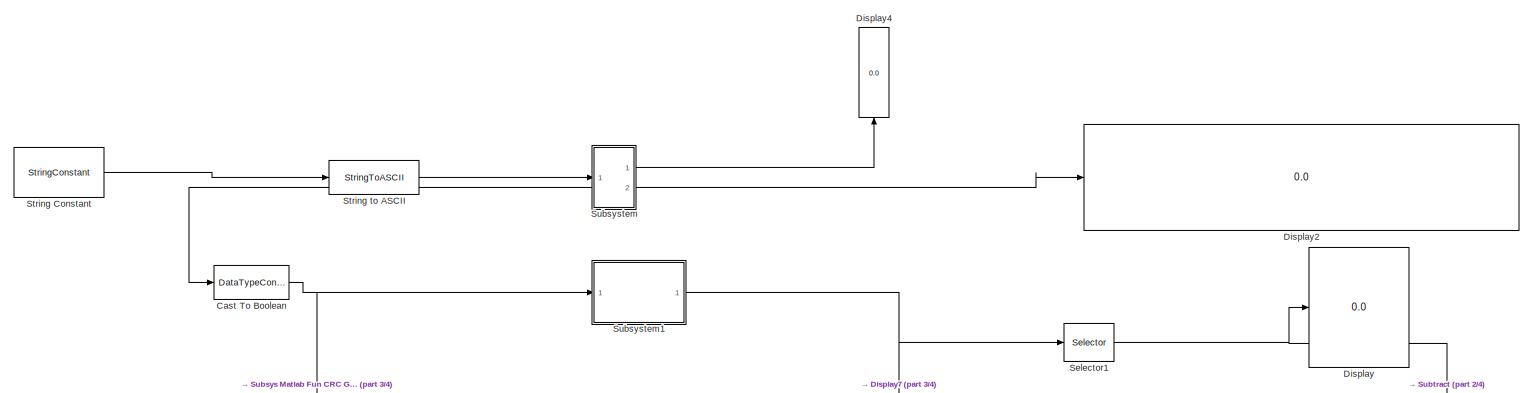
[diagram: root canvas - part 1/4, full width, top band]
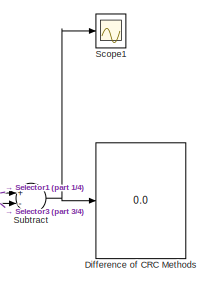
[diagram: root canvas - part 2/4, middle right region]
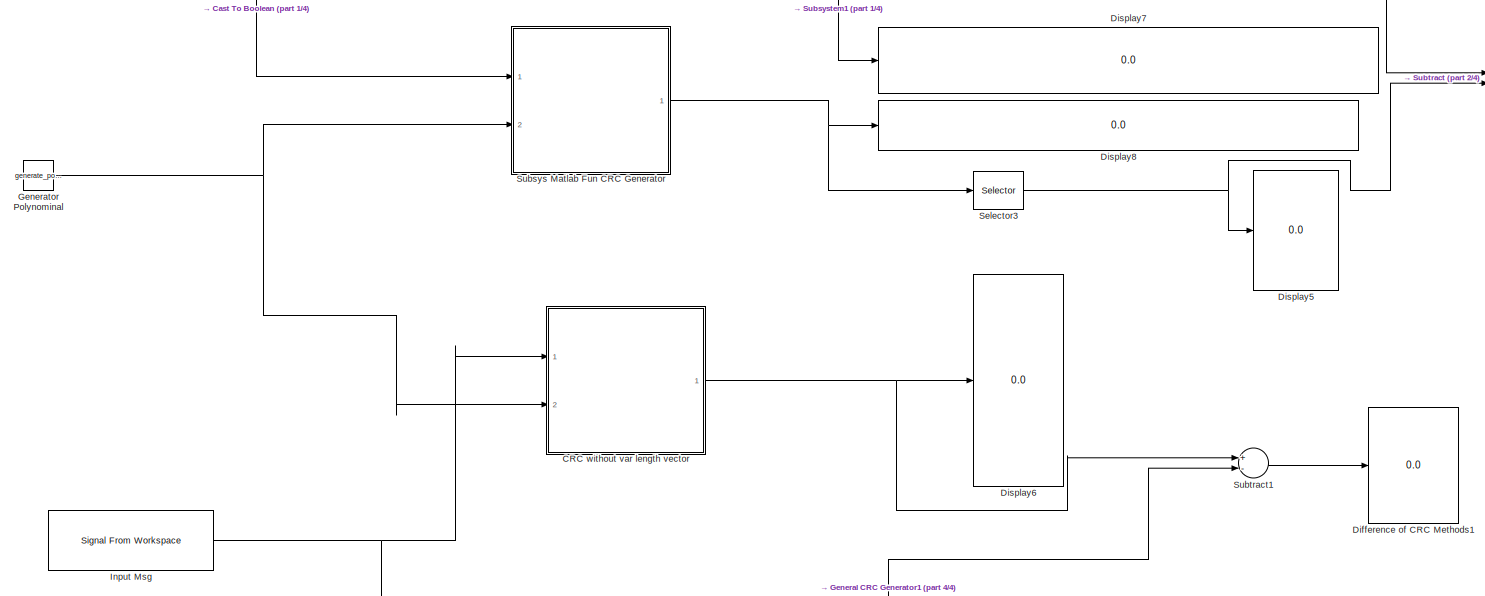
[diagram: root canvas - part 3/4, full width, middle band]
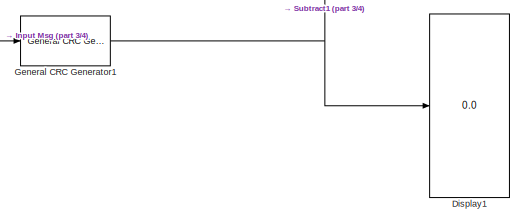
[diagram: root canvas - part 4/4, bottom center region]
MODEL slx_4823935a21b6
KIND model
CONFIG AbsTol = auto
CONFIG EnableMultiTasking = off
CONFIG FixedStep = 1
CONFIG MaxStep = auto
CONFIG MinStep = auto
CONFIG RelTol = 1e-3
CONFIG SampleTimeConstraint = Unconstrained
CONFIG Solver = FixedStepAuto
CONFIG SolverName = FixedStepAuto
CONFIG StartTime = 0.0
CONFIG StopTime = 20
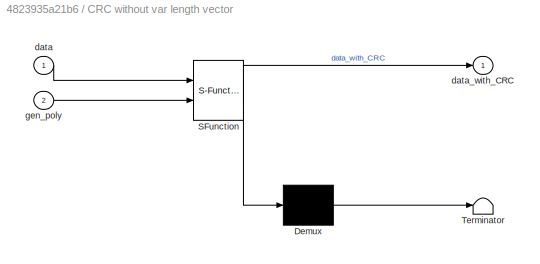
BLOCK [SubSystem] CRC without var length vector 
  ErrorFcn = Stateflow.Translate.translate
  PermitHierarchicalResolution = ExplicitOnly
  Ports = [2, 1]
  RequestExecContextInheritance = off
  SFBlockType = MATLAB Function
  TreatAsAtomicUnit = on
BLOCK [Demux] CRC without var length vector / Demux 
  Outputs = 1
  Ports = [1, 1]
BLOCK [S-Function] CRC without var length vector / SFunction 
  EnableBusSupport = on
  FunctionName = sf_sfun
  PortCounts = [2 2]
  Ports = [2, 2]
  SFcnIsStateOwnerBlock = off
  SFunctionDeploymentMode = off
  Tag = Stateflow S-Function CRC_Test 3
BLOCK [Terminator] CRC without var length vector / Terminator 
BLOCK [Inport] CRC without var length vector /data
  IconDisplay = Port number
BLOCK [Outport] CRC without var length vector /data_with_CRC
  IconDisplay = Port number
BLOCK [Inport] CRC without var length vector /gen_poly
  IconDisplay = Port number
  Port = 2
BLOCK [DataTypeConversion] Cast To Boolean
  OutDataTypeStr = boolean
  RndMeth = Floor
  SaturateOnIntegerOverflow = off
BLOCK [Display] Difference of CRC Methods
  Decimation = 1
  Ports = [1]
BLOCK [Display] Difference of CRC Methods1
  Decimation = 1
  Ports = [1]
BLOCK [Display] Display
  Decimation = 1
  Ports = [1]
BLOCK [Display] Display1
  Decimation = 1
  Ports = [1]
BLOCK [Display] Display2
  Decimation = 1
  Ports = [1]
BLOCK [Display] Display4
  Decimation = 1
  Ports = [1]
BLOCK [Display] Display5
  Decimation = 1
  Ports = [1]
BLOCK [Display] Display6
  Decimation = 1
  Ports = [1]
BLOCK [Display] Display7
  Decimation = 1
  Ports = [1]
BLOCK [Display] Display8
  Decimation = 1
  Ports = [1]
BLOCK [Reference] General CRC Generator1  REF=commcrc2/General CRC
Generator
  Ports = [1, 1]
  SourceBlock = commcrc2/General CRC\nGenerator
  SourceProductBaseCode = CM
  SourceProductName = Communications Toolbox
  SourceType = General CRC Generator
BLOCK [Constant] Generator Polynominal
  Value = generate_polynomial
BLOCK [Reference] Input Msg   REF=dspsrcs4/Signal From
Workspace
  Ports = [0, 1]
  SourceBlock = dspsrcs4/Signal From\nWorkspace
  SourceProductBaseCode = DS
  SourceProductName = DSP System Toolbox
  SourceType = Signal From Workspace
BLOCK [Scope] Scope1
  Floating = off
  NumInputPorts = 1
  Ports = [1]
  ScopeSpecificationString = Simulink.scopes.TimeScopeBlockCfg('CurrentConfiguration', extmgr.ConfigurationSet(extmgr.Configuration('Core','General UI',true),extmgr.Configuration('Core','Source UI',true),extmgr.Configuration('Sources','WiredSimulink',true,'DataLoggingVariableName','ScopeData1'),extmgr.Configuration('Visuals','Time Domain',true,'SerializedDisplays',{struct('MinYLimReal','-1.00000','MaxYLimReal','1.00000','YLab...<+1477ch>
BLOCK [Selector] Selector1
  IndexOptions = Index vector (dialog)
  Indices = [data_length+1:data_length+length(generate_polynomial)-1]
  InputPortWidth = data_length+length(generate_polynomial)-1
  OutputSizes = 1
  Ports = [1, 1]
BLOCK [Selector] Selector3
  IndexOptions = Index vector (dialog)
  Indices = [data_length+1:data_length+length(generate_polynomial)-1]
  InputPortWidth = data_length+length(generate_polynomial)-1
  OutputSizes = 1
  Ports = [1, 1]
BLOCK [StringConstant] String Constant
  String = "HKLawrlvfbnbliens"
BLOCK [StringToASCII] String to ASCII
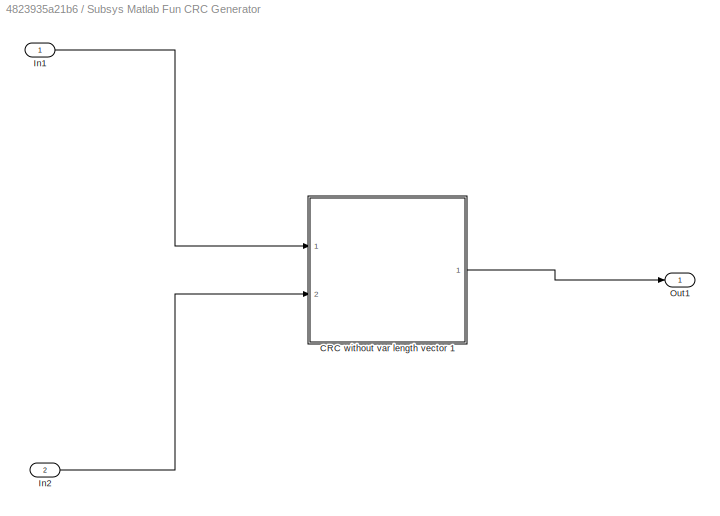
BLOCK [SubSystem] Subsys Matlab Fun CRC Generator
  Ports = [2, 1]
  RequestExecContextInheritance = off
  TreatAsAtomicUnit = on
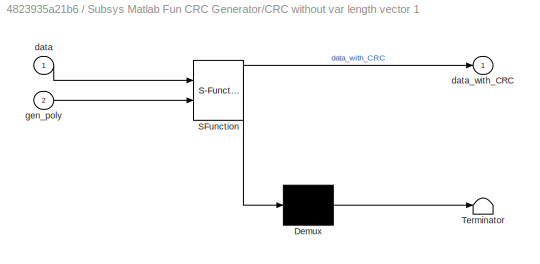
BLOCK [SubSystem] Subsys Matlab Fun CRC Generator/CRC without var length vector 1
  ErrorFcn = Stateflow.Translate.translate
  PermitHierarchicalResolution = ExplicitOnly
  Ports = [2, 1]
  RequestExecContextInheritance = off
  SFBlockType = MATLAB Function
  TreatAsAtomicUnit = on
BLOCK [Demux] Subsys Matlab Fun CRC Generator/CRC without var length vector 1/ Demux 
  Outputs = 1
  Ports = [1, 1]
BLOCK [S-Function] Subsys Matlab Fun CRC Generator/CRC without var length vector 1/ SFunction 
  EnableBusSupport = on
  FunctionName = sf_sfun
  PortCounts = [2 2]
  Ports = [2, 2]
  SFcnIsStateOwnerBlock = off
  SFunctionDeploymentMode = off
  Tag = Stateflow S-Function CRC_Test 1
BLOCK [Terminator] Subsys Matlab Fun CRC Generator/CRC without var length vector 1/ Terminator 
BLOCK [Inport] Subsys Matlab Fun CRC Generator/CRC without var length vector 1/data
  IconDisplay = Port number
BLOCK [Outport] Subsys Matlab Fun CRC Generator/CRC without var length vector 1/data_with_CRC
  IconDisplay = Port number
BLOCK [Inport] Subsys Matlab Fun CRC Generator/CRC without var length vector 1/gen_poly
  IconDisplay = Port number
  Port = 2
BLOCK [Inport] Subsys Matlab Fun CRC Generator/In1
  IconDisplay = Port number
BLOCK [Inport] Subsys Matlab Fun CRC Generator/In2
  IconDisplay = Port number
  Port = 2
BLOCK [Outport] Subsys Matlab Fun CRC Generator/Out1
  IconDisplay = Port number
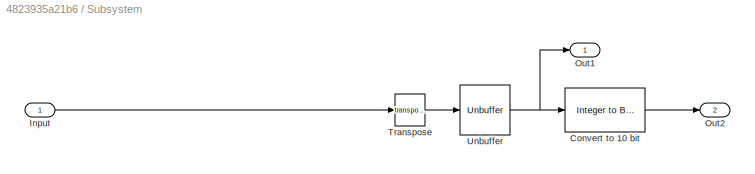
BLOCK [SubSystem] Subsystem
  Ports = [1, 2]
  RequestExecContextInheritance = off
  TreatAsAtomicUnit = on
BLOCK [Reference] Subsystem/Convert to 10 bit  REF=commutil2/Integer to Bit
Converter
  Ports = [1, 1]
  SourceBlock = commutil2/Integer to Bit\nConverter
  SourceProductBaseCode = CM
  SourceProductName = Communications Toolbox
  SourceType = Integer to Bit Converter
BLOCK [Inport] Subsystem/Input
  IconDisplay = Port number
BLOCK [Outport] Subsystem/Out1
  IconDisplay = Port number
BLOCK [Outport] Subsystem/Out2
  IconDisplay = Port number
  Port = 2
BLOCK [Math] Subsystem/Transpose
  Operator = transpose
  Ports = [1, 1]
BLOCK [Unbuffer] Subsystem/Unbuffer
  Ports = [1, 1]
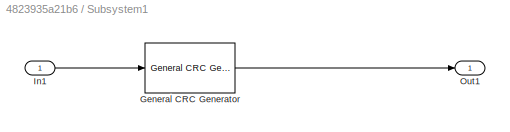
BLOCK [SubSystem] Subsystem1
  Ports = [1, 1]
  RequestExecContextInheritance = off
  TreatAsAtomicUnit = on
BLOCK [Reference] Subsystem1/General CRC Generator  REF=commcrc2/General CRC
Generator
  Ports = [1, 1]
  SourceBlock = commcrc2/General CRC\nGenerator
  SourceProductBaseCode = CM
  SourceProductName = Communications Toolbox
  SourceType = General CRC Generator
BLOCK [Inport] Subsystem1/In1
  IconDisplay = Port number
BLOCK [Outport] Subsystem1/Out1
  IconDisplay = Port number
BLOCK [Sum] Subtract
  InputSameDT = off
  Inputs = +-
  OutDataTypeStr = Inherit: Inherit via internal rule
  Ports = [2, 1]
  SaturateOnIntegerOverflow = off
BLOCK [Sum] Subtract1
  InputSameDT = off
  Inputs = +-
  OutDataTypeStr = Inherit: Inherit via internal rule
  Ports = [2, 1]
  SaturateOnIntegerOverflow = off
NET CRC without var length vector :1 -> Display6:1, Subtract1:1
NET Cast To Boolean:1 -> Subsys Matlab Fun CRC Generator:1, Subsystem1:1
NET General CRC Generator1:1 -> Display1:1, Subtract1:2
NET Generator Polynominal:1 -> CRC without var length vector :2, Subsys Matlab Fun CRC Generator:2
NET Input Msg :1 -> CRC without var length vector :1, General CRC Generator1:1
NET Selector1:1 -> Display:1, Subtract:1
NET Selector3:1 -> Display5:1, Subtract:2
LINE String Constant:1 -> String to ASCII:1
LINE String to ASCII:1 -> Subsystem:1
LINE Subsys Matlab Fun CRC Generator/CRC without var length vector 1:1 -> Subsys Matlab Fun CRC Generator/Out1:1
LINE Subsys Matlab Fun CRC Generator/In1:1 -> Subsys Matlab Fun CRC Generator/CRC without var length vector 1:1
LINE Subsys Matlab Fun CRC Generator/In2:1 -> Subsys Matlab Fun CRC Generator/CRC without var length vector 1:2
NET Subsys Matlab Fun CRC Generator:1 -> Display8:1, Selector3:1
LINE Subsystem/Convert to 10 bit:1 -> Subsystem/Out2:1
LINE Subsystem/Input:1 -> Subsystem/Transpose:1
LINE Subsystem/Transpose:1 -> Subsystem/Unbuffer:1
NET Subsystem/Unbuffer:1 -> Subsystem/Convert to 10 bit:1, Subsystem/Out1:1
LINE Subsystem1/General CRC Generator:1 -> Subsystem1/Out1:1
LINE Subsystem1/In1:1 -> Subsystem1/General CRC Generator:1
NET Subsystem1:1 -> Display7:1, Selector1:1
LINE Subsystem:1 -> Display4:1
NET Subsystem:2 -> Cast To Boolean:1, Display2:1
LINE Subtract1:1 -> Difference of CRC Methods1:1
NET Subtract:1 -> Difference of CRC Methods:1, Scope1:1
note: NET lines group one-source signal fan-out (src -> all destinations, sorted); 1:1 wires keep LINE
CHART Subsys Matlab Fun CRC Generator/CRC without var length vector
1 states=1 transitions=1
  STATE_LABEL 'eML_blk_kernel()'
  STATE_LABEL 'SCRIPT:\n\nfunction data_with_CRC = CRC_Generator(data,gen_poly)\ndata_l=length(data);\nCRC_length = length(gen_poly)-1\n\nzrs = zeros(CRC_length,1);\ndata_append=[logical(data); zrs];\n\nindex = 1;\nwhile index <= data_l\n    current_data = data_append(index:CRC_length+index)\n    tmp = xor(current_data,gen_poly)\n    [k r] = max( tmp~=0, [], 1 ); %k max in row, r index of max\n    if k~=0\n%         coder.vars...<+425ch>'
CHART CRC without var length vector
 states=1 transitions=1
  STATE_LABEL 'eML_blk_kernel()'
  STATE_LABEL 'SCRIPT:\n\nfunction data_with_CRC = CRC_Generator(data,gen_poly)\ndata_l=length(data);\nCRC_length = length(gen_poly)-1\n\nzrs = zeros(CRC_length,1);\ndata_append=[logical(data); zrs];\n\nindex = 1;\nwhile index <= data_l\n    current_data = data_append(index:CRC_length+index)\n    tmp = xor(current_data,gen_poly)\n    [k r] = max( tmp~=0, [], 1 ); %k max in row, r index of max\n    if k~=0\n%         coder.vars...<+425ch>'
